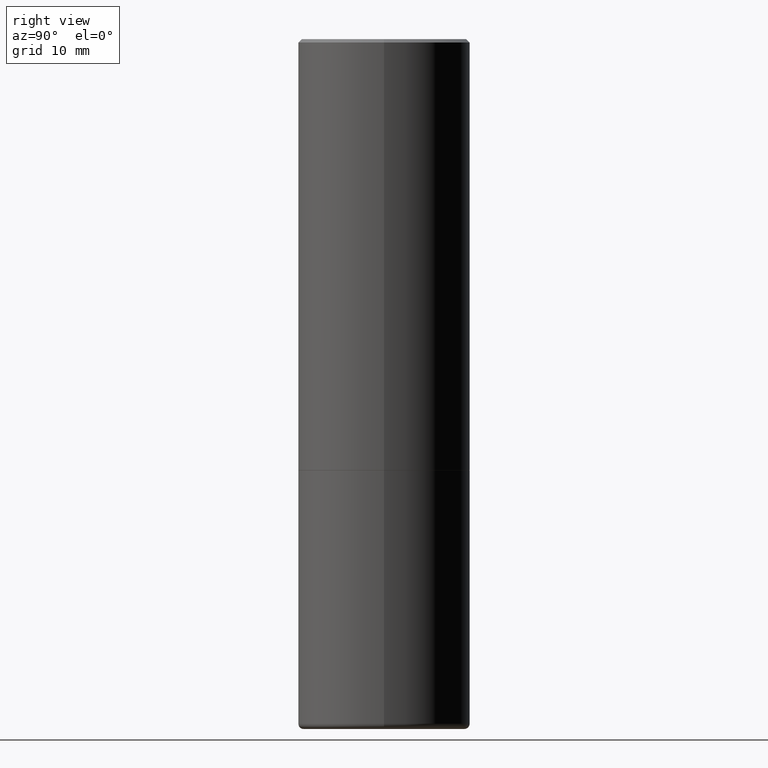
[diagram: clean part render]
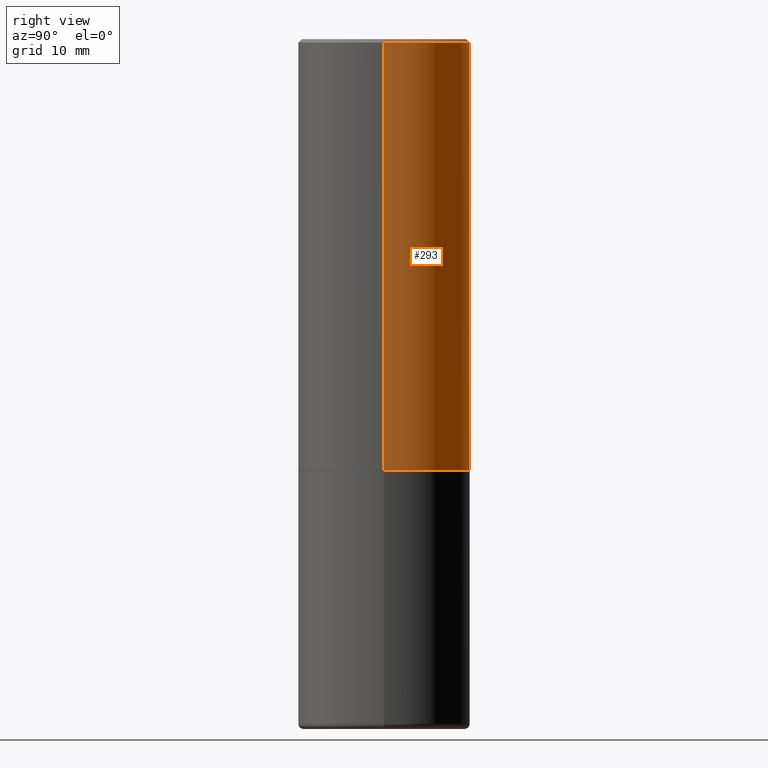
[diagram: same view with one face highlighted and labeled with its STEP entity id]
A machine part, right view. The second image highlights one B-rep face of the part: STEP entity #293.
In plain terms, the highlighted cylindrical surface (partial cylindrical patch) has radius 12.7 mm, axis along (-0, 0, 1).
Its self-contained STEP definition (entity closure, byte-faithful):
#12 = ORIENTED_EDGE ( 'NONE', *, *, #439, .T. ) ;
#37 = DIRECTION ( 'NONE',  ( 1.000000000000000000, -6.982962677686265133E-15, 0.000000000000000000 ) ) ;
#47 = ORIENTED_EDGE ( 'NONE', *, *, #410, .F. ) ;
#49 = LINE ( 'NONE', #183, #397 ) ;
#84 = LINE ( 'NONE', #148, #190 ) ;
#95 = CIRCLE ( 'NONE', #108, 0.4999999999999997224 ) ;
#96 = CARTESIAN_POINT ( 'NONE',  ( -0.5000000000000000000, -8.448070674724411945E-16, -2.499000000000000110 ) ) ;
#105 = CARTESIAN_POINT ( 'NONE',  ( -0.4999999999999997224, 3.421651712066268085E-15, -0.02000000000000011144 ) ) ;
#108 = AXIS2_PLACEMENT_3D ( 'NONE', #152, #354, #328 ) ;
#115 = EDGE_LOOP ( 'NONE', ( #118, #12, #216, #47 ) ) ;
#117 = VERTEX_POINT ( 'NONE', #364 ) ;
#118 = ORIENTED_EDGE ( 'NONE', *, *, #196, .T. ) ;
#140 = DIRECTION ( 'NONE',  ( -2.445468806185136597E-29, 3.491481338843145583E-15, 1.000000000000000000 ) ) ;
#143 = VERTEX_POINT ( 'NONE', #96 ) ;
#148 = CARTESIAN_POINT ( 'NONE',  ( 0.4999999999999998335, -3.491481338843132566E-15, 2.438088387897967336E-29 ) ) ;
#152 = CARTESIAN_POINT ( 'NONE',  ( 4.890937612370301184E-31, -6.982962677686329819E-17, -0.02000000000000011144 ) ) ;
#161 = AXIS2_PLACEMENT_3D ( 'NONE', #167, #313, #239 ) ;
#167 = CARTESIAN_POINT ( 'NONE',  ( 0.000000000000000000, 0.000000000000000000, 0.000000000000000000 ) ) ;
#175 = VERTEX_POINT ( 'NONE', #221 ) ;
#183 = CARTESIAN_POINT ( 'NONE',  ( -0.4999999999999998335, 3.552713678800499746E-15, -2.459467545127452330E-29 ) ) ;
#190 = VECTOR ( 'NONE', #363, 39.37007874015748143 ) ;
#196 = EDGE_CURVE ( 'NONE', #117, #143, #367, .T. ) ;
#208 = AXIS2_PLACEMENT_3D ( 'NONE', #290, #140, #37 ) ;
#216 = ORIENTED_EDGE ( 'NONE', *, *, #428, .F. ) ;
#221 = CARTESIAN_POINT ( 'NONE',  ( 0.4999999999999997224, -3.500078625662627502E-15, -0.02000000000000011144 ) ) ;
#239 = DIRECTION ( 'NONE',  ( 1.000000000000000000, -6.982962677686267499E-15, 4.876176775795936353E-29 ) ) ;
#248 = FACE_OUTER_BOUND ( 'NONE', #115, .T. ) ;
#283 = VERTEX_POINT ( 'NONE', #105 ) ;
#286 = DIRECTION ( 'NONE',  ( -2.445468806185136877E-29, 3.491481338843145188E-15, 1.000000000000000000 ) ) ;
#290 = CARTESIAN_POINT ( 'NONE',  ( 6.111226546656657010E-29, -8.725211865769021935E-15, -2.499000000000000110 ) ) ;
#293 = ADVANCED_FACE ( 'NONE', ( #248 ), #346, .T. ) ;
#313 = DIRECTION ( 'NONE',  ( -2.445468806185136597E-29, 3.491481338843145583E-15, 1.000000000000000000 ) ) ;
#328 = DIRECTION ( 'NONE',  ( 1.000000000000000000, -6.982962677686266711E-15, 0.000000000000000000 ) ) ;
#346 = CYLINDRICAL_SURFACE ( 'NONE', #161, 0.4999999999999998335 ) ;
#354 = DIRECTION ( 'NONE',  ( -2.445468806185136597E-29, 3.491481338843145583E-15, 1.000000000000000000 ) ) ;
#363 = DIRECTION ( 'NONE',  ( -2.445468806185136877E-29, 3.491481338843145188E-15, 1.000000000000000000 ) ) ;
#364 = CARTESIAN_POINT ( 'NONE',  ( 0.5000000000000000000, -1.221669320461215371E-14, -2.499000000000000110 ) ) ;
#367 = CIRCLE ( 'NONE', #208, 0.5000000000000000000 ) ;
#397 = VECTOR ( 'NONE', #286, 39.37007874015748143 ) ;
#410 = EDGE_CURVE ( 'NONE', #117, #175, #84, .T. ) ;
#428 = EDGE_CURVE ( 'NONE', #175, #283, #95, .T. ) ;
#439 = EDGE_CURVE ( 'NONE', #143, #283, #49, .T. ) ;